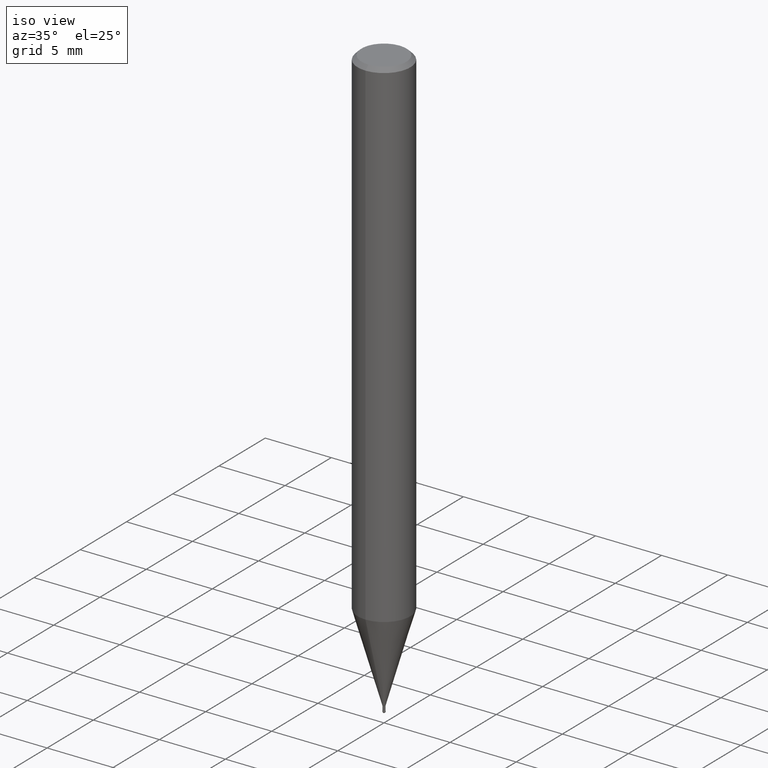
[diagram: clean part render]
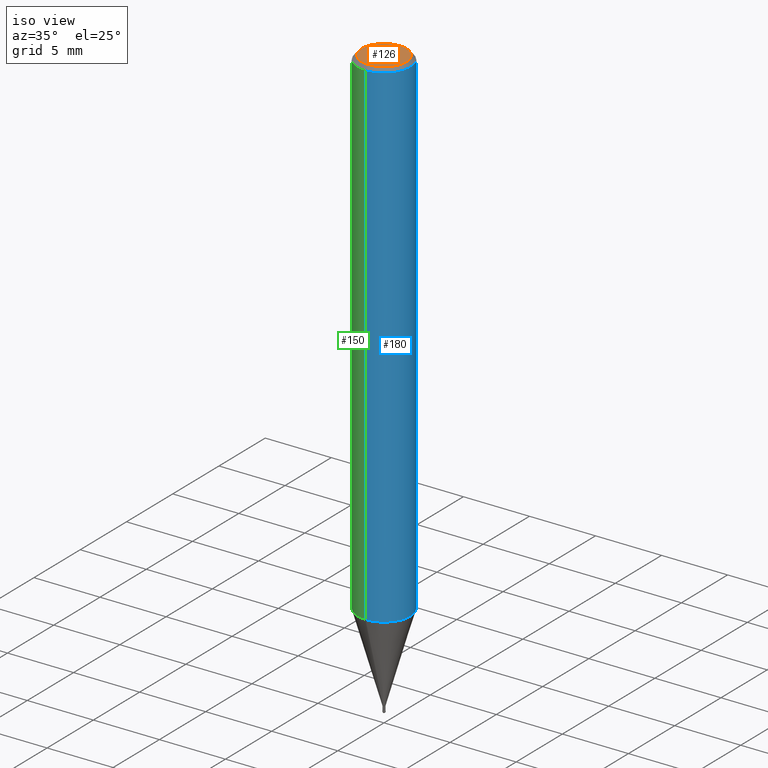
[diagram: same view with three faces highlighted in distinct colors, each labeled with its STEP entity id]
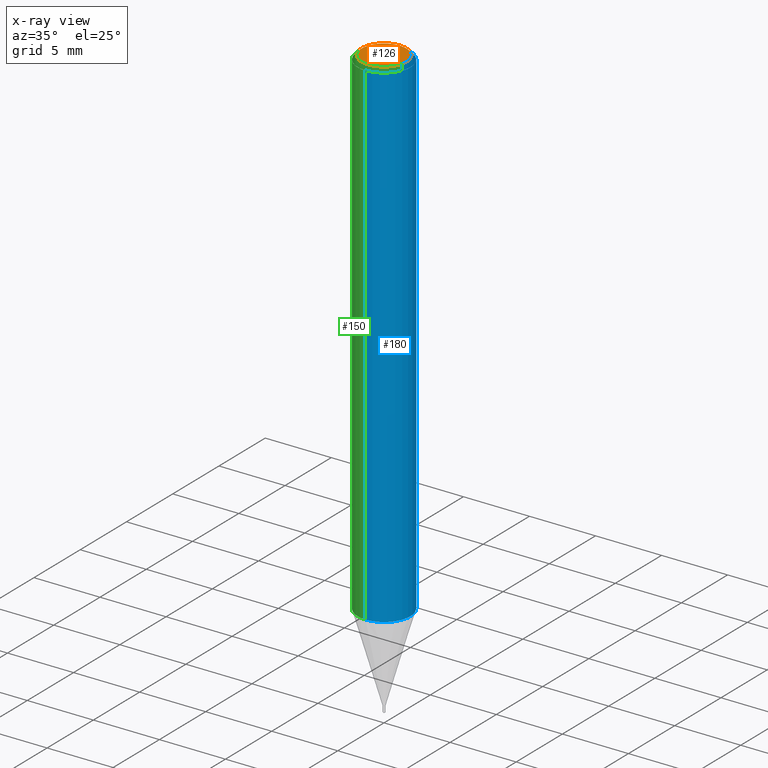
[diagram: x-ray of the same camera — body ghosted, the three highlighted faces saturated]
A machine part, iso view with three faces highlighted in distinct colors.
The next image is the same camera in x-ray (body ghosted, the three faces saturated) — at least one of them is partly hidden behind the body in this view.
Their STEP definitions:

[orange] entity #126 — the highlighted planar face has unit normal (-0, 0, 1).
#126=ADVANCED_FACE('',(#271),#272,.T.);
#144=VERTEX_POINT('',#293);
#156=VERTEX_POINT('',#306);
#172=EDGE_CURVE('',#144,#156,#322,.T.);
#182=EDGE_CURVE('',#156,#144,#335,.T.);
#271=FACE_OUTER_BOUND('',#431,.T.);
#272=PLANE('',#432);
#293=CARTESIAN_POINT('',(2.08183080149804E-016,-1.7,0.0));
#306=CARTESIAN_POINT('',(0.0,1.7,0.0));
#322=CIRCLE('',#496,1.7);
#335=CIRCLE('',#511,1.7);
#431=EDGE_LOOP('',(#603,#604));
#432=AXIS2_PLACEMENT_3D('',#605,#606,#607);
#496=AXIS2_PLACEMENT_3D('',#658,#659,#660);
#511=AXIS2_PLACEMENT_3D('',#688,#689,#690);
#603=ORIENTED_EDGE('',*,*,#182,.F.);
#604=ORIENTED_EDGE('',*,*,#172,.F.);
#605=CARTESIAN_POINT('',(0.0,0.85,0.0));
#606=DIRECTION('',(-0.0,0.0,1.0));
#607=DIRECTION('',(0.0,-1.0,0.0));
#658=CARTESIAN_POINT('',(0.0,0.0,0.0));
#659=DIRECTION('',(0.0,0.0,-1.0));
#660=DIRECTION('',(0.0,1.0,0.0));
#688=CARTESIAN_POINT('',(0.0,0.0,0.0));
#689=DIRECTION('',(0.0,0.0,-1.0));
#690=DIRECTION('',(0.0,1.0,0.0));

[blue] entity #180 — the highlighted cylindrical surface (edge-blend (fillet) strip) has radius 2 mm, axis along (-0, -0, 1).
#114=VERTEX_POINT('',#258);
#136=VERTEX_POINT('',#283);
#148=EDGE_CURVE('',#204,#168,#297,.T.);
#154=EDGE_CURVE('',#136,#168,#304,.T.);
#168=VERTEX_POINT('',#318);
#170=EDGE_CURVE('',#136,#114,#320,.T.);
#180=ADVANCED_FACE('',(#332),#333,.T.);
#196=EDGE_CURVE('',#114,#204,#351,.T.);
#204=VERTEX_POINT('',#360);
#258=CARTESIAN_POINT('',(0.0,2.0,-37.856));
#283=CARTESIAN_POINT('',(0.0,2.0,-0.299999999999997));
#297=LINE('',#464,#465);
#304=CIRCLE('',#473,2.0);
#318=CARTESIAN_POINT('',(2.44921270764475E-016,-2.0,-0.299999999999997));
#320=LINE('',#492,#493);
#332=FACE_OUTER_BOUND('',#507,.T.);
#333=CYLINDRICAL_SURFACE('',#508,2.0);
#351=CIRCLE('',#530,2.0);
#360=CARTESIAN_POINT('',(2.44921270764475E-016,-2.0,-37.856));
#464=CARTESIAN_POINT('',(2.44921270764475E-016,-2.0,-19.078));
#465=VECTOR('',#640,1.0);
#473=AXIS2_PLACEMENT_3D('',#649,#650,#651);
#492=CARTESIAN_POINT('',(-2.44921270764475E-016,2.0,-19.078));
#493=VECTOR('',#657,1.0);
#507=EDGE_LOOP('',(#681,#682,#683,#684));
#508=AXIS2_PLACEMENT_3D('',#685,#686,#687);
#530=AXIS2_PLACEMENT_3D('',#708,#709,#710);
#640=DIRECTION('',(-0.0,-0.0,1.0));
#649=CARTESIAN_POINT('',(0.0,0.0,-0.299999999999997));
#650=DIRECTION('',(0.0,0.0,-1.0));
#651=DIRECTION('',(0.0,1.0,0.0));
#657=DIRECTION('',(0.0,0.0,-1.0));
#681=ORIENTED_EDGE('',*,*,#170,.F.);
#682=ORIENTED_EDGE('',*,*,#154,.T.);
#683=ORIENTED_EDGE('',*,*,#148,.F.);
#684=ORIENTED_EDGE('',*,*,#196,.F.);
#685=CARTESIAN_POINT('',(0.0,0.0,-19.078));
#686=DIRECTION('',(-0.0,-0.0,1.0));
#687=DIRECTION('',(0.0,1.0,0.0));
#708=CARTESIAN_POINT('',(0.0,0.0,-37.856));
#709=DIRECTION('',(0.0,0.0,-1.0));
#710=DIRECTION('',(0.0,1.0,0.0));

[green] entity #150 — the highlighted cylindrical surface (edge-blend (fillet) strip) has radius 2 mm, axis along (-0, -0, 1).
#114=VERTEX_POINT('',#258);
#136=VERTEX_POINT('',#283);
#148=EDGE_CURVE('',#204,#168,#297,.T.);
#150=ADVANCED_FACE('',(#299),#300,.T.);
#168=VERTEX_POINT('',#318);
#170=EDGE_CURVE('',#136,#114,#320,.T.);
#198=EDGE_CURVE('',#204,#114,#353,.T.);
#202=EDGE_CURVE('',#168,#136,#358,.T.);
#204=VERTEX_POINT('',#360);
#258=CARTESIAN_POINT('',(0.0,2.0,-37.856));
#283=CARTESIAN_POINT('',(0.0,2.0,-0.299999999999997));
#297=LINE('',#464,#465);
#299=FACE_OUTER_BOUND('',#467,.T.);
#300=CYLINDRICAL_SURFACE('',#468,2.0);
#318=CARTESIAN_POINT('',(2.44921270764475E-016,-2.0,-0.299999999999997));
#320=LINE('',#492,#493);
#353=CIRCLE('',#533,2.0);
#358=CIRCLE('',#539,2.0);
#360=CARTESIAN_POINT('',(2.44921270764475E-016,-2.0,-37.856));
#464=CARTESIAN_POINT('',(2.44921270764475E-016,-2.0,-19.078));
#465=VECTOR('',#640,1.0);
#467=EDGE_LOOP('',(#642,#643,#644,#645));
#468=AXIS2_PLACEMENT_3D('',#646,#647,#648);
#492=CARTESIAN_POINT('',(-2.44921270764475E-016,2.0,-19.078));
#493=VECTOR('',#657,1.0);
#533=AXIS2_PLACEMENT_3D('',#711,#712,#713);
#539=AXIS2_PLACEMENT_3D('',#722,#723,#724);
#640=DIRECTION('',(-0.0,-0.0,1.0));
#642=ORIENTED_EDGE('',*,*,#170,.T.);
#643=ORIENTED_EDGE('',*,*,#198,.F.);
#644=ORIENTED_EDGE('',*,*,#148,.T.);
#645=ORIENTED_EDGE('',*,*,#202,.T.);
#646=CARTESIAN_POINT('',(0.0,0.0,-19.078));
#647=DIRECTION('',(-0.0,-0.0,1.0));
#648=DIRECTION('',(0.0,1.0,0.0));
#657=DIRECTION('',(0.0,0.0,-1.0));
#711=CARTESIAN_POINT('',(0.0,0.0,-37.856));
#712=DIRECTION('',(0.0,0.0,-1.0));
#713=DIRECTION('',(0.0,1.0,0.0));
#722=CARTESIAN_POINT('',(0.0,0.0,-0.299999999999997));
#723=DIRECTION('',(0.0,0.0,-1.0));
#724=DIRECTION('',(0.0,1.0,0.0));